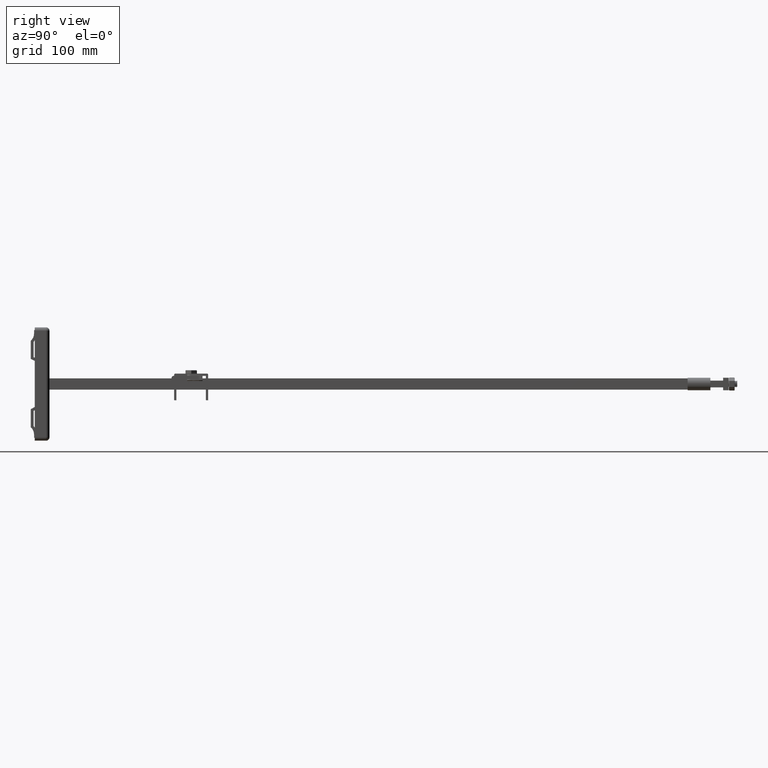
[diagram: clean part render]
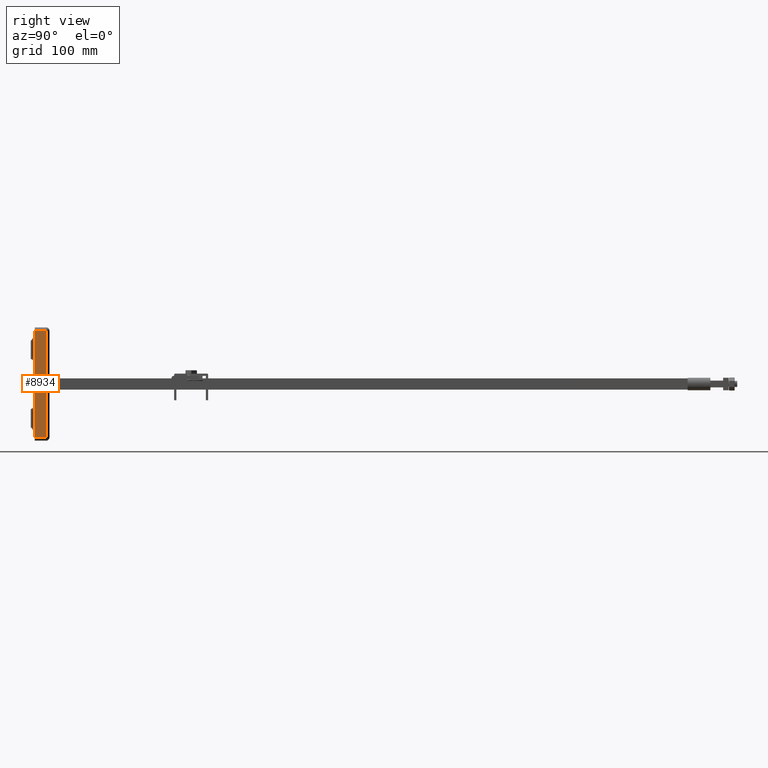
[diagram: same view with one face highlighted and labeled with its STEP entity id]
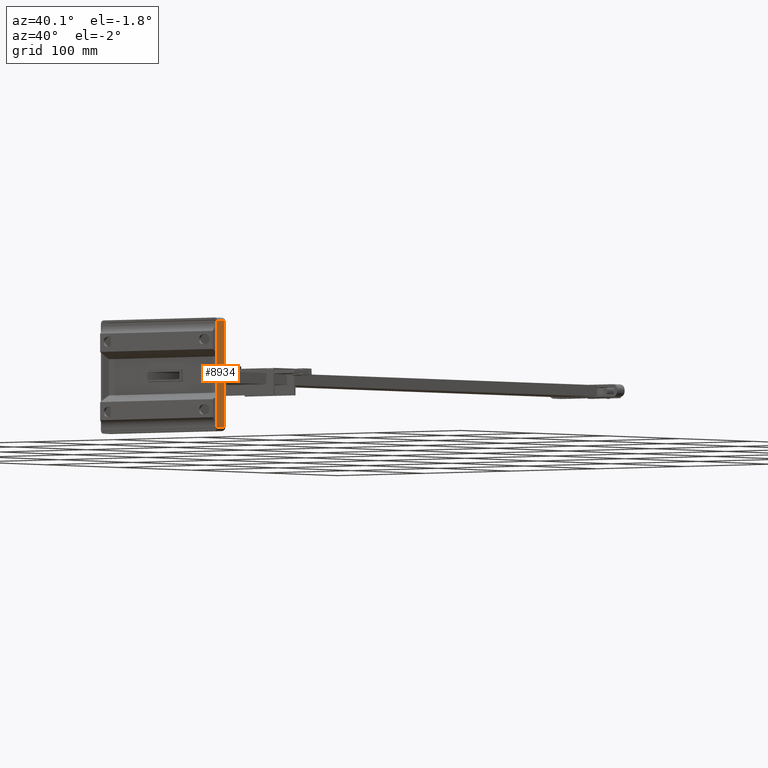
[diagram: same view with one face highlighted and labeled with its STEP entity id]
A machine part, right view. The second image highlights one B-rep face of the part: STEP entity #8934.
A second angle (auxiliary view) of the same face is appended — the face is thin or edge-on in the first view.
In plain terms, the highlighted planar face has unit normal (1, 0, 0).
Its self-contained STEP definition (entity closure, byte-faithful):
#1076=FACE_OUTER_BOUND('',#1599,.T.);
#1599=EDGE_LOOP('',(#6330,#6331,#6332,#6333));
#2189=LINE('',#12726,#3002);
#2193=LINE('',#12741,#3006);
#2194=LINE('',#12745,#3007);
#2195=LINE('',#12746,#3008);
#3002=VECTOR('',#10565,10.);
#3006=VECTOR('',#10585,10.);
#3007=VECTOR('',#10590,10.);
#3008=VECTOR('',#10591,10.);
#3792=VERTEX_POINT('',#12722);
#3793=VERTEX_POINT('',#12724);
#3796=VERTEX_POINT('',#12740);
#3797=VERTEX_POINT('',#12744);
#4754=EDGE_CURVE('',#3793,#3792,#2189,.T.);
#4761=EDGE_CURVE('',#3792,#3796,#2193,.T.);
#4763=EDGE_CURVE('',#3797,#3793,#2194,.T.);
#4764=EDGE_CURVE('',#3796,#3797,#2195,.T.);
#6330=ORIENTED_EDGE('',*,*,#4754,.F.);
#6331=ORIENTED_EDGE('',*,*,#4763,.F.);
#6332=ORIENTED_EDGE('',*,*,#4764,.F.);
#6333=ORIENTED_EDGE('',*,*,#4761,.F.);
#8695=PLANE('',#9628);
#8934=ADVANCED_FACE('',(#1076),#8695,.T.);
#9628=AXIS2_PLACEMENT_3D('',#12743,#10588,#10589);
#10565=DIRECTION('',(0.,1.,0.));
#10585=DIRECTION('',(1.,0.,0.));
#10588=DIRECTION('center_axis',(0.,0.,1.));
#10589=DIRECTION('ref_axis',(0.,-1.,0.));
#10590=DIRECTION('',(-1.,0.,0.));
#10591=DIRECTION('',(0.,-1.,0.));
#12722=CARTESIAN_POINT('',(3.,97.,0.));
#12724=CARTESIAN_POINT('',(3.,3.,0.));
#12726=CARTESIAN_POINT('',(3.,75.,0.));
#12740=CARTESIAN_POINT('',(13.,97.,0.));
#12741=CARTESIAN_POINT('',(0.,97.,0.));
#12743=CARTESIAN_POINT('Origin',(0.,100.,0.));
#12744=CARTESIAN_POINT('',(13.,3.00000000000001,0.));
#12745=CARTESIAN_POINT('',(0.,3.,0.));
#12746=CARTESIAN_POINT('',(13.,100.,0.));